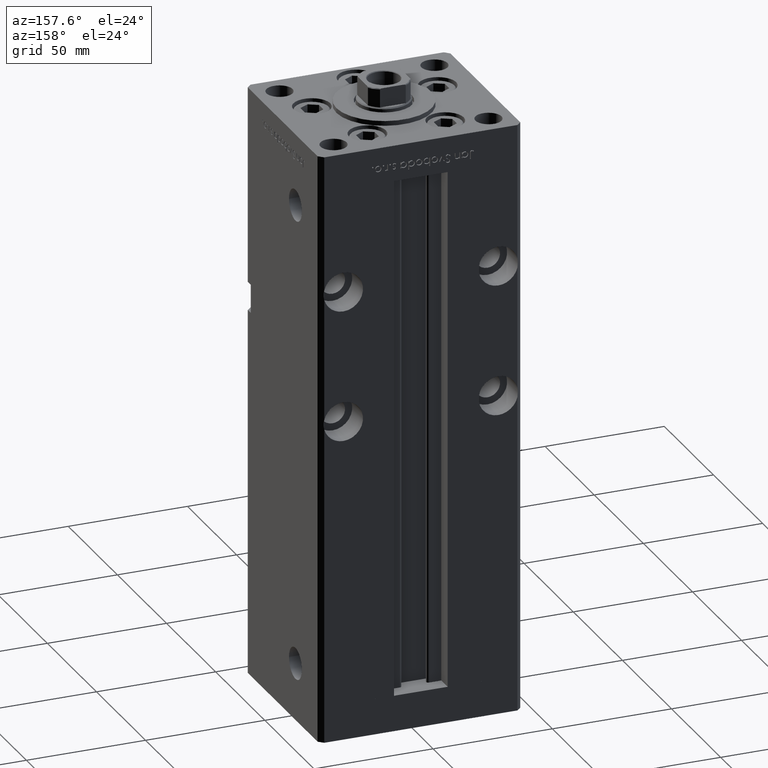
[diagram: clean part render]
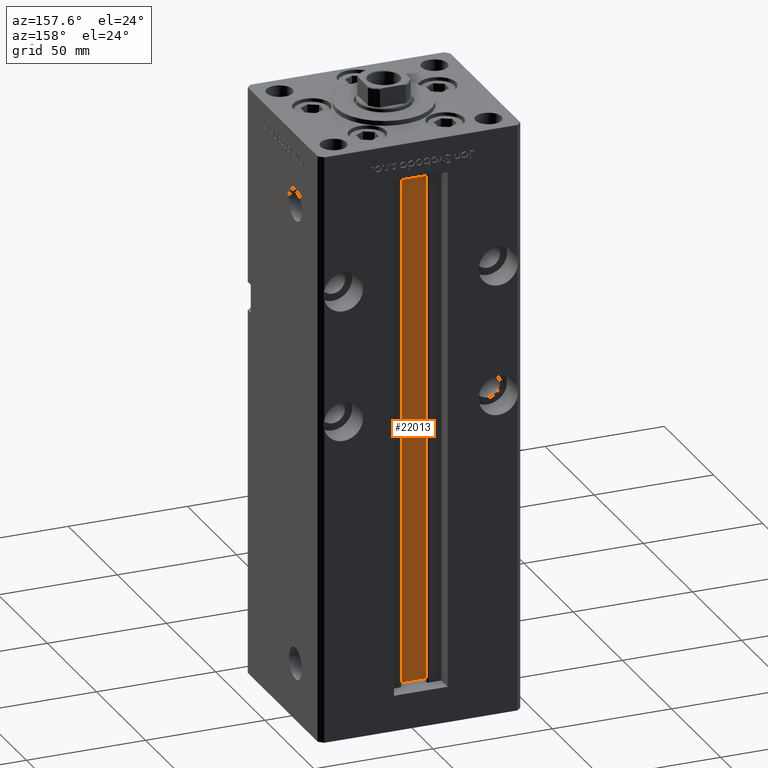
[diagram: same view with one face highlighted and labeled with its STEP entity id]
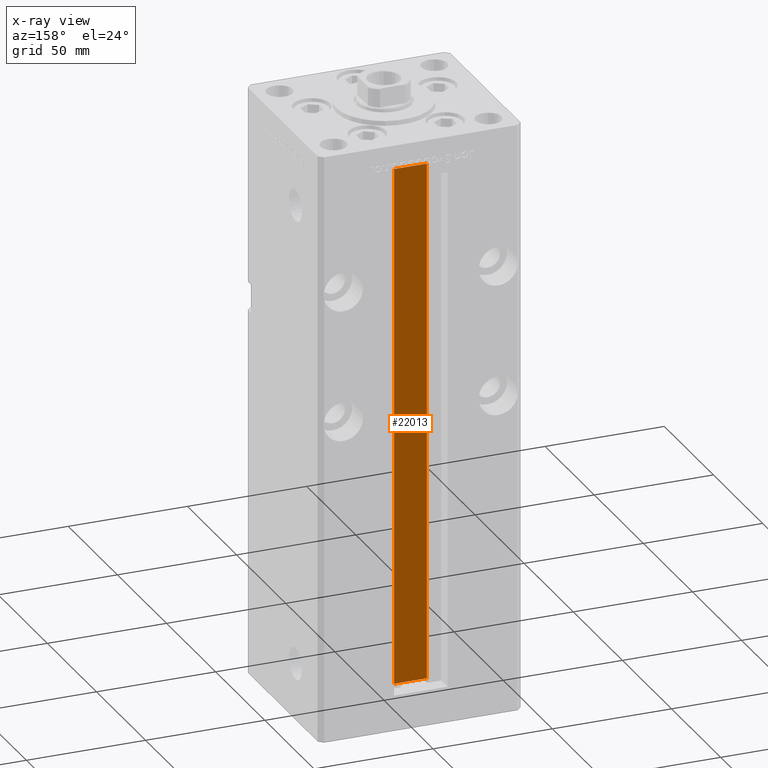
[diagram: x-ray of the same camera — body ghosted, the highlighted face saturated]
A machine part, auxiliary view. The second image highlights one B-rep face of the part: STEP entity #22013.
The next image is the same camera in x-ray: the body ghosted, the highlighted face saturated — about 0% of this face is hidden behind the body in this view.
In plain terms, the highlighted planar face has unit normal (0, -1, 0).
Its self-contained STEP definition (entity closure, byte-faithful):
#295 = DIRECTION ( 'NONE',  ( -0.000000000000000000, -0.000000000000000000, 1.000000000000000000 ) ) ;
#2396 = EDGE_CURVE ( 'NONE', #4161, #17569, #20805, .T. ) ;
#3434 = VERTEX_POINT ( 'NONE', #33637 ) ;
#4161 = VERTEX_POINT ( 'NONE', #18907 ) ;
#4907 = VECTOR ( 'NONE', #295, 1000.000000000000000 ) ;
#5103 = DIRECTION ( 'NONE',  ( 0.000000000000000000, -1.000000000000000000, -0.000000000000000000 ) ) ;
#9113 = CARTESIAN_POINT ( 'NONE',  ( 6.876153656360465938, 26.99999999999986855, 0.000000000000000000 ) ) ;
#13303 = CARTESIAN_POINT ( 'NONE',  ( -6.876153656360465938, 26.99999999999986855, 0.000000000000000000 ) ) ;
#14427 = EDGE_CURVE ( 'NONE', #41489, #3434, #52208, .T. ) ;
#16142 = VECTOR ( 'NONE', #22937, 1000.000000000000000 ) ;
#17569 = VERTEX_POINT ( 'NONE', #9113 ) ;
#18907 = CARTESIAN_POINT ( 'NONE',  ( -6.876153656360465938, 26.99999999999986855, 0.000000000000000000 ) ) ;
#19730 = ORIENTED_EDGE ( 'NONE', *, *, #21399, .T. ) ;
#20167 = FACE_OUTER_BOUND ( 'NONE', #29339, .T. ) ;
#20706 = CARTESIAN_POINT ( 'NONE',  ( 6.876153656360465938, 26.99999999999986855, 0.000000000000000000 ) ) ;
#20805 = LINE ( 'NONE', #33423, #29641 ) ;
#21399 = EDGE_CURVE ( 'NONE', #4161, #3434, #50097, .T. ) ;
#22013 = ADVANCED_FACE ( 'NONE', ( #20167 ), #33840, .F. ) ;
#22463 = ORIENTED_EDGE ( 'NONE', *, *, #2396, .F. ) ;
#22937 = DIRECTION ( 'NONE',  ( -1.000000000000000000, 0.000000000000000000, 0.000000000000000000 ) ) ;
#25530 = CARTESIAN_POINT ( 'NONE',  ( 6.876153656360465938, 26.99999999999986855, 0.000000000000000000 ) ) ;
#29339 = EDGE_LOOP ( 'NONE', ( #46494, #22463, #19730, #41556 ) ) ;
#29641 = VECTOR ( 'NONE', #46309, 1000.000000000000000 ) ;
#29695 = DIRECTION ( 'NONE',  ( -0.000000000000000000, -0.000000000000000000, 1.000000000000000000 ) ) ;
#29746 = CARTESIAN_POINT ( 'NONE',  ( 6.876153656360465938, 26.99999999999986855, 218.5000000000000000 ) ) ;
#33423 = CARTESIAN_POINT ( 'NONE',  ( 6.876153656360465938, 26.99999999999986855, 0.000000000000000000 ) ) ;
#33637 = CARTESIAN_POINT ( 'NONE',  ( -6.876153656360465938, 26.99999999999986855, 218.5000000000000000 ) ) ;
#33840 = PLANE ( 'NONE',  #42128 ) ;
#37243 = EDGE_CURVE ( 'NONE', #17569, #41489, #41126, .T. ) ;
#37351 = DIRECTION ( 'NONE',  ( 0.000000000000000000, 0.000000000000000000, -1.000000000000000000 ) ) ;
#38623 = VECTOR ( 'NONE', #29695, 1000.000000000000000 ) ;
#39860 = CARTESIAN_POINT ( 'NONE',  ( 0.000000000000000000, 26.99999999999986855, 218.5000000000000000 ) ) ;
#41126 = LINE ( 'NONE', #20706, #4907 ) ;
#41489 = VERTEX_POINT ( 'NONE', #29746 ) ;
#41556 = ORIENTED_EDGE ( 'NONE', *, *, #14427, .F. ) ;
#42128 = AXIS2_PLACEMENT_3D ( 'NONE', #25530, #5103, #37351 ) ;
#46309 = DIRECTION ( 'NONE',  ( 1.000000000000000000, -0.000000000000000000, -0.000000000000000000 ) ) ;
#46494 = ORIENTED_EDGE ( 'NONE', *, *, #37243, .F. ) ;
#50097 = LINE ( 'NONE', #13303, #38623 ) ;
#52208 = LINE ( 'NONE', #39860, #16142 ) ;